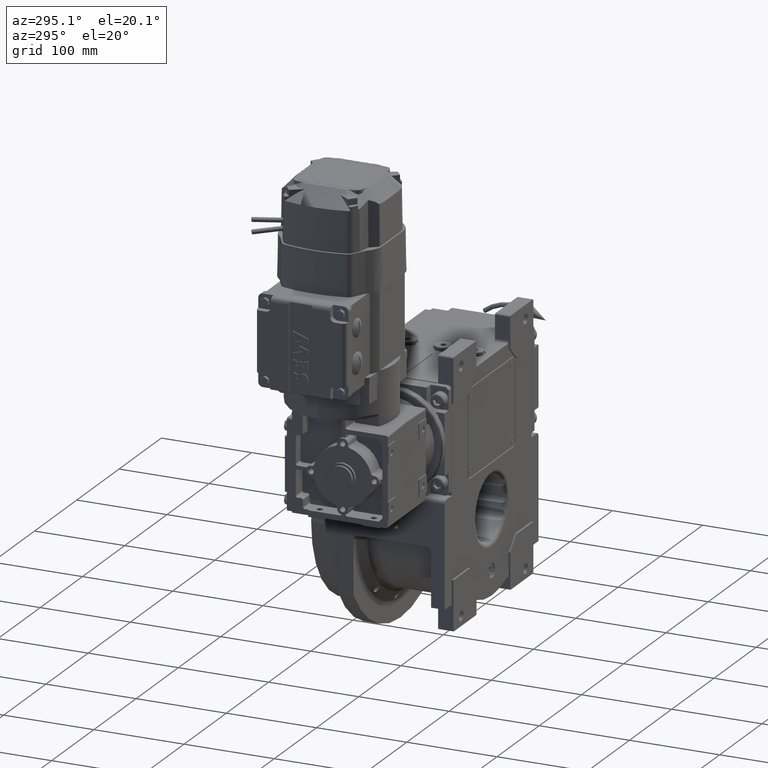
[diagram: clean part render]
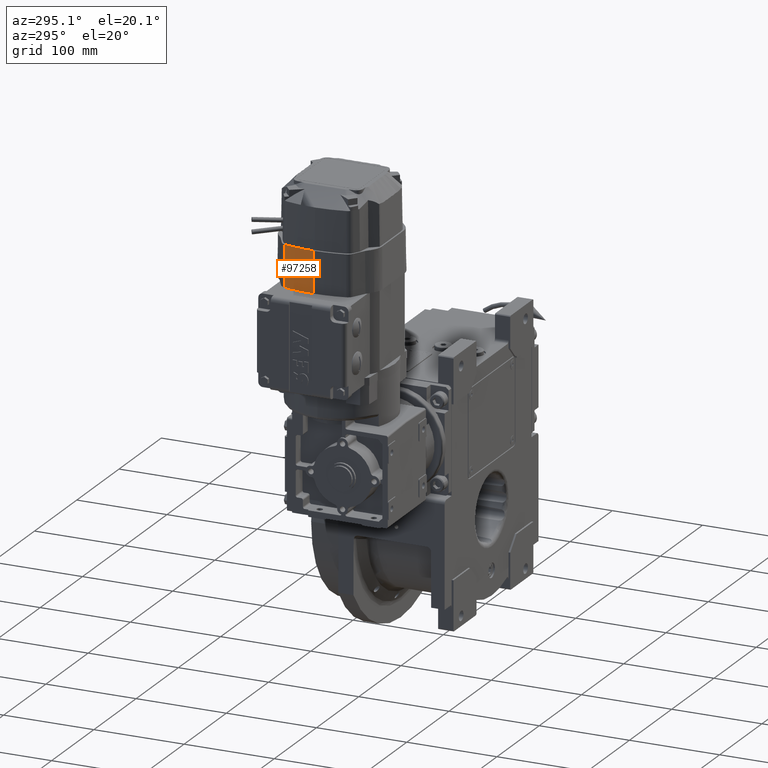
[diagram: same view with one face highlighted and labeled with its STEP entity id]
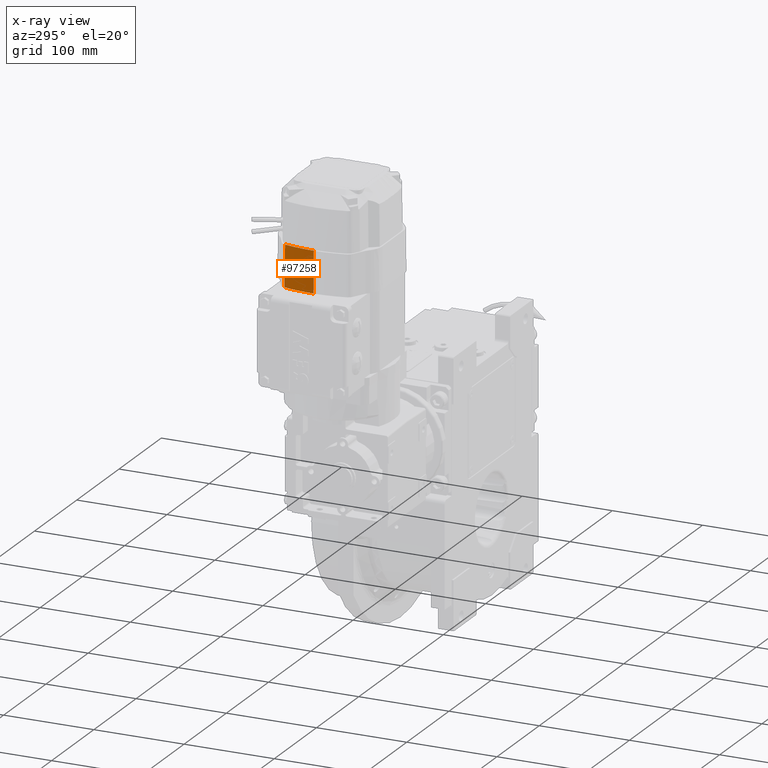
[diagram: x-ray of the same camera — body ghosted, the highlighted face saturated]
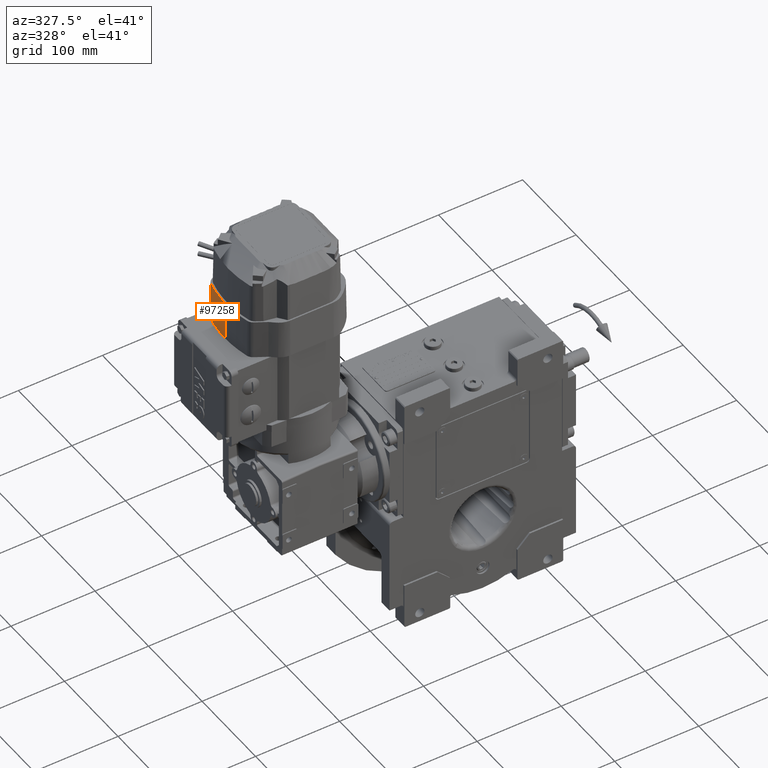
[diagram: same view with one face highlighted and labeled with its STEP entity id]
A machine part, auxiliary view. The second image highlights one B-rep face of the part: STEP entity #97258.
The next image is the same camera in x-ray: the body ghosted, the highlighted face saturated — about 0% of this face is hidden behind the body in this view.
A second angle (auxiliary view) of the same face is appended — the face is thin or edge-on in the first view.
In plain terms, the highlighted conical surface has half-angle 1 deg.
Its self-contained STEP definition (entity closure, byte-faithful):
#3422 = CARTESIAN_POINT ( 'NONE',  ( 198.5000000000000000, -67.09999999999999432, 22.99999999999857536 ) ) ;
#4520 = CARTESIAN_POINT ( 'NONE',  ( 198.5000000000000000, -67.09999999999999432, 22.99999999999857536 ) ) ;
#5442 = EDGE_CURVE ( 'NONE', #7625, #83521, #14486, .T. ) ;
#7625 = VERTEX_POINT ( 'NONE', #65980 ) ;
#8507 = EDGE_LOOP ( 'NONE', ( #84774, #80604, #85865, #71205 ) ) ;
#11984 = EDGE_CURVE ( 'NONE', #82968, #39235, #80066, .T. ) ;
#12058 = CONICAL_SURFACE ( 'NONE', #94542, 143.8770089285719962, 0.01745329251993518738 ) ;
#14486 = CIRCLE ( 'NONE', #69336, 143.8770089285719962 ) ;
#15125 = CARTESIAN_POINT ( 'NONE',  ( 198.5000000000000000, 76.77700892857180293, 23.00000000000017764 ) ) ;
#15619 = FACE_OUTER_BOUND ( 'NONE', #8507, .T. ) ;
#20742 = VECTOR ( 'NONE', #35335, 1000.000000000000114 ) ;
#28762 = CARTESIAN_POINT ( 'NONE',  ( 213.6666666666669983, -62.73995541299431977, 57.05167413670470467 ) ) ;
#35335 = DIRECTION ( 'NONE',  ( -0.9998476951563911586, -0.01745240643728420554, 4.033328567224508737E-15 ) ) ;
#39235 = VERTEX_POINT ( 'NONE', #47944 ) ;
#39774 = AXIS2_PLACEMENT_3D ( 'NONE', #70232, #63651, #48970 ) ;
#45656 = DIRECTION ( 'NONE',  ( 0.000000000000000000, -1.000000000000000000, -1.046546622258039787E-14 ) ) ;
#47944 = CARTESIAN_POINT ( 'NONE',  ( 244.0000000000000000, -62.28240713311300425, 56.69224620976221019 ) ) ;
#48486 = CARTESIAN_POINT ( 'NONE',  ( 244.0000000000000000, -66.30579454576607645, 22.99999999999854339 ) ) ;
#48970 = DIRECTION ( 'NONE',  ( 0.000000000000000000, -1.000000000000000000, -1.047506092171846652E-14 ) ) ;
#51256 = B_SPLINE_CURVE_WITH_KNOTS ( 'NONE', 3,
 ( #59108, #89415, #28762, #59606 ),
 .UNSPECIFIED., .F., .F.,
 ( 4, 4 ),
 ( 0.000000000000000000, 1.000000000000000000 ),
 .UNSPECIFIED. ) ;
#59108 = CARTESIAN_POINT ( 'NONE',  ( 244.0000000000000000, -62.28240713311300425, 56.69224620976221019 ) ) ;
#59606 = CARTESIAN_POINT ( 'NONE',  ( 198.5000000000000000, -62.96826927186538114, 57.23230811550420327 ) ) ;
#63651 = DIRECTION ( 'NONE',  ( -1.000000000000000000, 2.553558529461168282E-43, 4.218847493575569610E-15 ) ) ;
#65980 = CARTESIAN_POINT ( 'NONE',  ( 198.5000000000000000, -62.96826927186538114, 57.23230811550420327 ) ) ;
#67624 = LINE ( 'NONE', #4520, #20742 ) ;
#68328 = EDGE_CURVE ( 'NONE', #82968, #83521, #67624, .T. ) ;
#68884 = DIRECTION ( 'NONE',  ( 1.000000000000000000, -2.553558529461168282E-43, -4.218847493575569610E-15 ) ) ;
#69336 = AXIS2_PLACEMENT_3D ( 'NONE', #90156, #68884, #45656 ) ;
#70232 = CARTESIAN_POINT ( 'NONE',  ( 244.0000000000000000, 76.77700892857200188, 23.00000000000004619 ) ) ;
#71205 = ORIENTED_EDGE ( 'NONE', *, *, #5442, .T. ) ;
#76731 = DIRECTION ( 'NONE',  ( -1.000000000000000000, -5.354638600191150493E-15, 4.218847493575520701E-15 ) ) ;
#80066 = CIRCLE ( 'NONE', #39774, 143.0828034743380215 ) ;
#80604 = ORIENTED_EDGE ( 'NONE', *, *, #11984, .T. ) ;
#82968 = VERTEX_POINT ( 'NONE', #48486 ) ;
#83521 = VERTEX_POINT ( 'NONE', #3422 ) ;
#84774 = ORIENTED_EDGE ( 'NONE', *, *, #68328, .F. ) ;
#85865 = ORIENTED_EDGE ( 'NONE', *, *, #90656, .T. ) ;
#89415 = CARTESIAN_POINT ( 'NONE',  ( 228.8333333333349913, -62.51133391014857210, 56.87165317684334553 ) ) ;
#90156 = CARTESIAN_POINT ( 'NONE',  ( 198.5000000000000000, 76.77700892857180293, 23.00000000000017764 ) ) ;
#90656 = EDGE_CURVE ( 'NONE', #39235, #7625, #51256, .T. ) ;
#94542 = AXIS2_PLACEMENT_3D ( 'NONE', #15125, #76731, #98498 ) ;
#97258 = ADVANCED_FACE ( 'NONE', ( #15619 ), #12058, .T. ) ;
#98498 = DIRECTION ( 'NONE',  ( 5.401530953589882593E-15, -1.000000000000000000, -1.046546622258039787E-14 ) ) ;